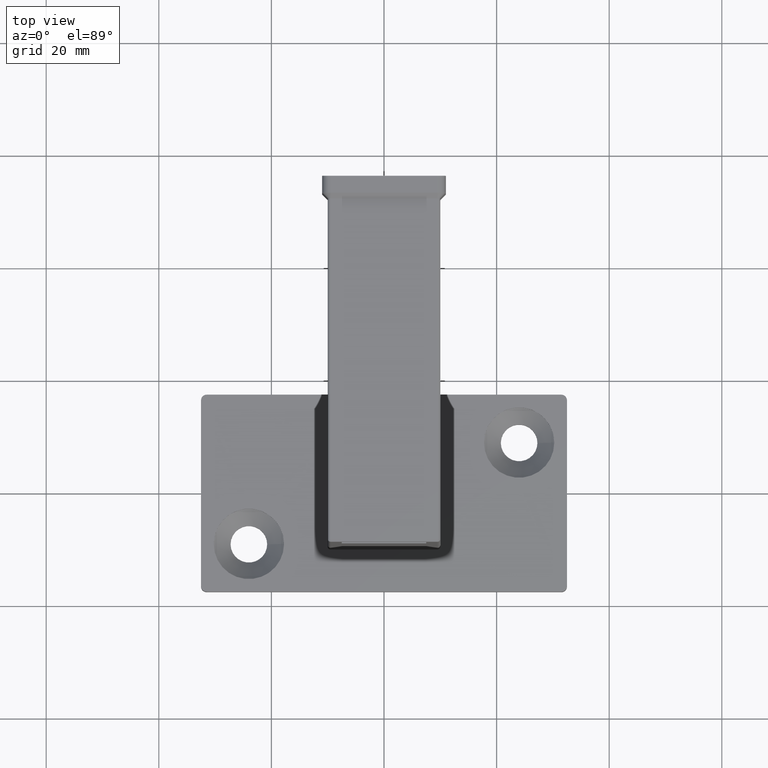
[diagram: clean part render]
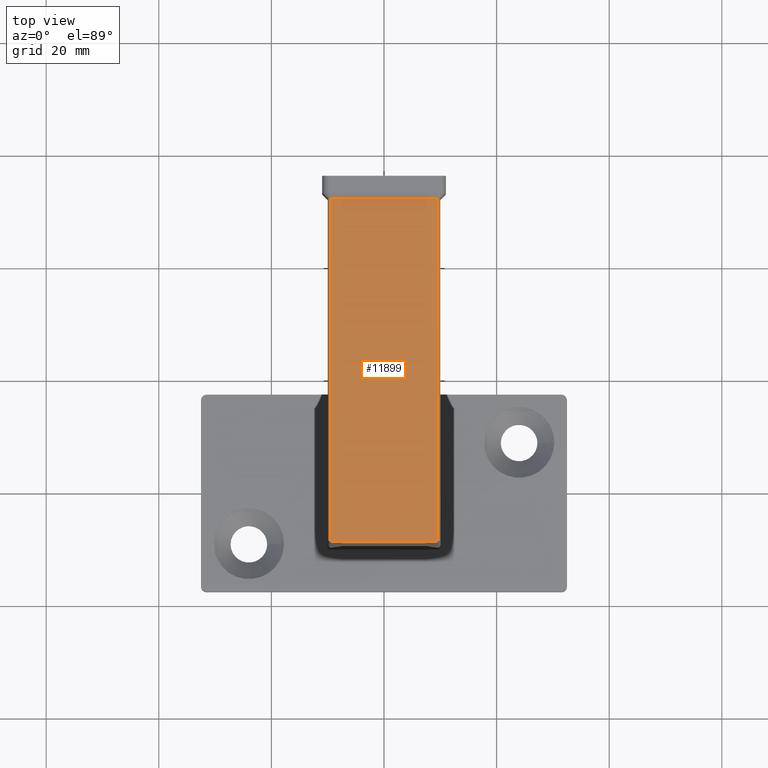
[diagram: same view with one face highlighted and labeled with its STEP entity id]
A machine part, top view. The second image highlights one B-rep face of the part: STEP entity #11899.
In plain terms, the highlighted planar face has unit normal (0, 0, -1).
Its self-contained STEP definition (entity closure, byte-faithful):
#198 = VECTOR ( 'NONE', #4876, 1000.000000000000000 ) ;
#267 = DIRECTION ( 'NONE',  ( -1.000000000000000000, 0.000000000000000000, 0.000000000000000000 ) ) ;
#365 = FACE_OUTER_BOUND ( 'NONE', #9116, .T. ) ;
#378 = VECTOR ( 'NONE', #1863, 1000.000000000000000 ) ;
#1310 = ORIENTED_EDGE ( 'NONE', *, *, #12032, .T. ) ;
#1392 = EDGE_CURVE ( 'NONE', #11816, #2930, #8859, .T. ) ;
#1480 = AXIS2_PLACEMENT_3D ( 'NONE', #8823, #13087, #7907 ) ;
#1830 = LINE ( 'NONE', #2800, #198 ) ;
#1863 = DIRECTION ( 'NONE',  ( -1.000000000000000000, 0.000000000000000000, 0.000000000000000000 ) ) ;
#2414 = ORIENTED_EDGE ( 'NONE', *, *, #4175, .F. ) ;
#2516 = VECTOR ( 'NONE', #6642, 1000.000000000000000 ) ;
#2693 = LINE ( 'NONE', #12962, #2516 ) ;
#2800 = CARTESIAN_POINT ( 'NONE',  ( -9.500000000000001776, -10.00000000000000888, 84.99999999999998579 ) ) ;
#2930 = VERTEX_POINT ( 'NONE', #8589 ) ;
#3020 = CARTESIAN_POINT ( 'NONE',  ( -9.499999999999998224, -10.00000000000000888, 84.99999999999998579 ) ) ;
#3064 = ORIENTED_EDGE ( 'NONE', *, *, #1392, .T. ) ;
#3134 = CARTESIAN_POINT ( 'NONE',  ( 9.499999999999998224, 50.99999999999997868, 84.99999999999998579 ) ) ;
#3169 = VERTEX_POINT ( 'NONE', #3020 ) ;
#4071 = ORIENTED_EDGE ( 'NONE', *, *, #9032, .T. ) ;
#4175 = EDGE_CURVE ( 'NONE', #13154, #3169, #4280, .T. ) ;
#4280 = LINE ( 'NONE', #11178, #378 ) ;
#4393 = CARTESIAN_POINT ( 'NONE',  ( 9.499999999999998224, -10.00000000000000888, 84.99999999999998579 ) ) ;
#4659 = PLANE ( 'NONE',  #1480 ) ;
#4876 = DIRECTION ( 'NONE',  ( -0.000000000000000000, -1.000000000000000000, -0.000000000000000000 ) ) ;
#6120 = CARTESIAN_POINT ( 'NONE',  ( 9.999999999999998224, 50.99999999999997868, 84.99999999999998579 ) ) ;
#6642 = DIRECTION ( 'NONE',  ( 0.000000000000000000, 1.000000000000000000, 0.000000000000000000 ) ) ;
#7907 = DIRECTION ( 'NONE',  ( -1.000000000000000000, 0.000000000000000000, -0.000000000000000000 ) ) ;
#8589 = CARTESIAN_POINT ( 'NONE',  ( -9.500000000000001776, 50.99999999999997868, 84.99999999999998579 ) ) ;
#8823 = CARTESIAN_POINT ( 'NONE',  ( 9.999999999999998224, -10.00000000000000888, 84.99999999999998579 ) ) ;
#8859 = LINE ( 'NONE', #6120, #11827 ) ;
#9032 = EDGE_CURVE ( 'NONE', #13154, #11816, #2693, .T. ) ;
#9116 = EDGE_LOOP ( 'NONE', ( #4071, #3064, #1310, #2414 ) ) ;
#11178 = CARTESIAN_POINT ( 'NONE',  ( 9.999999999999998224, -10.00000000000000888, 84.99999999999998579 ) ) ;
#11816 = VERTEX_POINT ( 'NONE', #3134 ) ;
#11827 = VECTOR ( 'NONE', #267, 1000.000000000000000 ) ;
#11899 = ADVANCED_FACE ( 'NONE', ( #365 ), #4659, .F. ) ;
#12032 = EDGE_CURVE ( 'NONE', #2930, #3169, #1830, .T. ) ;
#12962 = CARTESIAN_POINT ( 'NONE',  ( 9.499999999999998224, -10.00000000000000888, 84.99999999999998579 ) ) ;
#13087 = DIRECTION ( 'NONE',  ( 0.000000000000000000, 0.000000000000000000, -1.000000000000000000 ) ) ;
#13154 = VERTEX_POINT ( 'NONE', #4393 ) ;